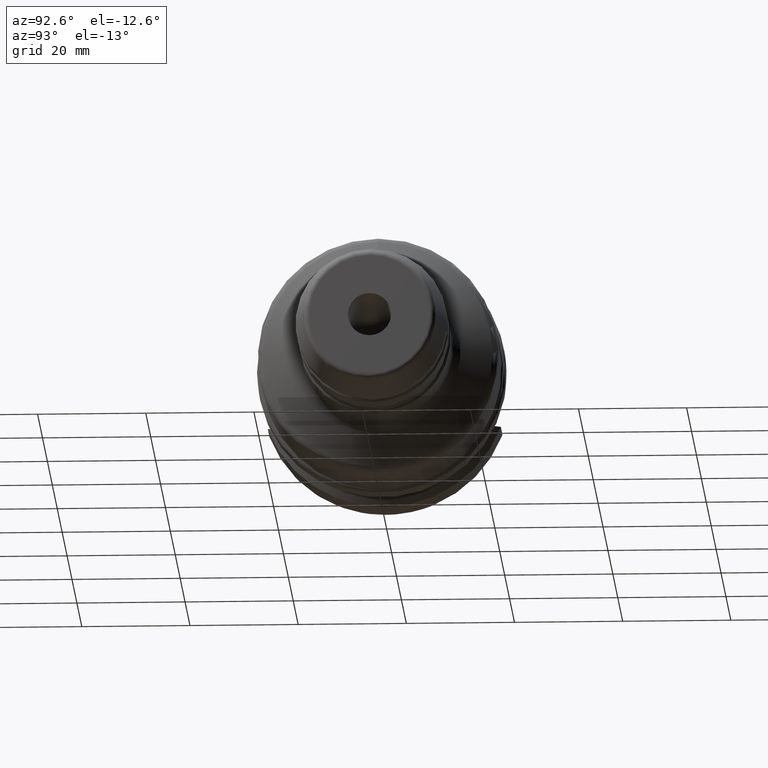
[diagram: clean part render]
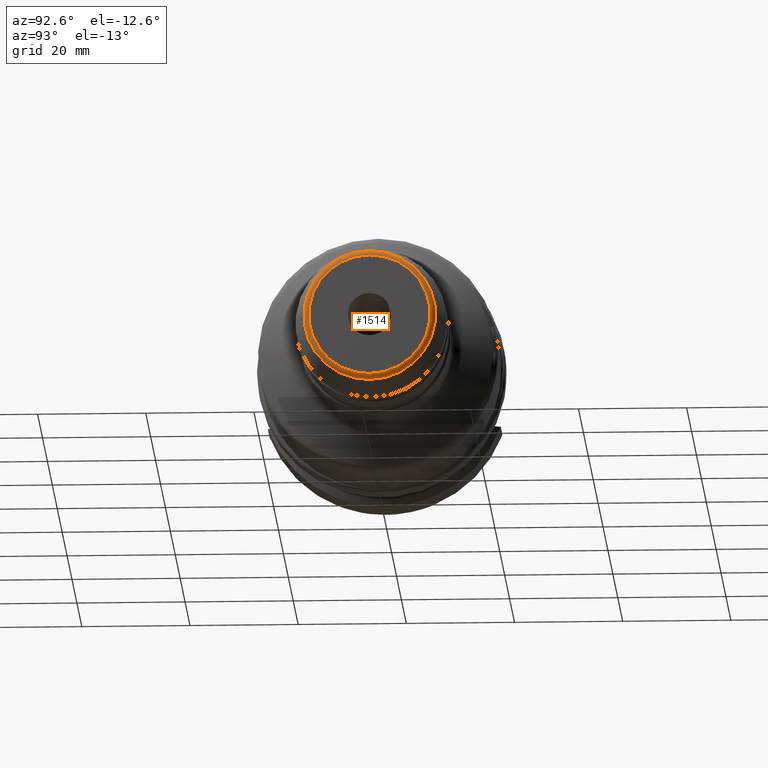
[diagram: same view with one face highlighted and labeled with its STEP entity id]
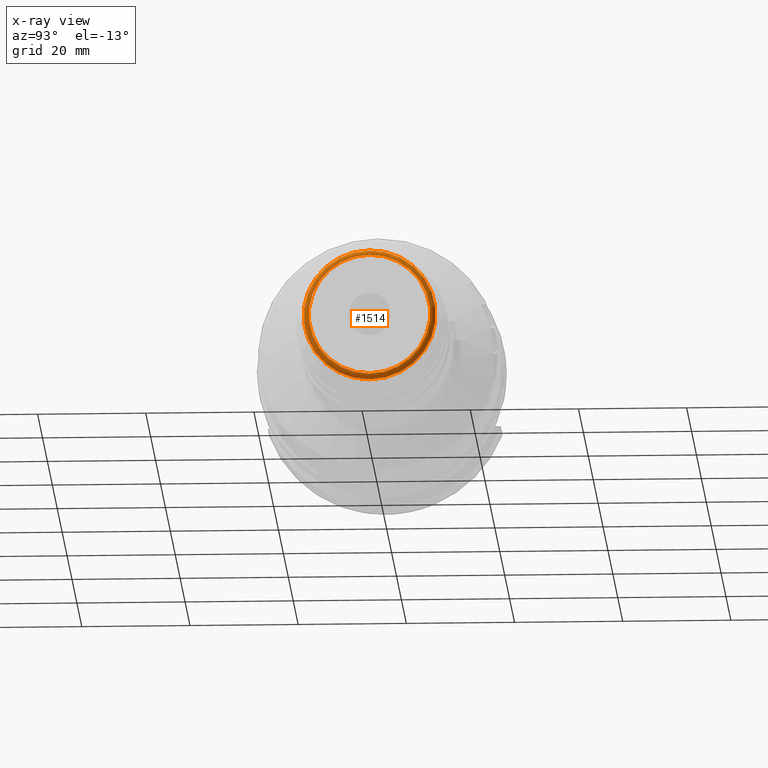
[diagram: x-ray of the same camera — body ghosted, the highlighted face saturated]
A machine part, auxiliary view. The second image highlights one B-rep face of the part: STEP entity #1514.
The next image is the same camera in x-ray: the body ghosted, the highlighted face saturated — about 0% of this face is hidden behind the body in this view.
In plain terms, the highlighted toroidal blend (fillet) surface has major radius 11.2327 mm and minor (blend) radius 1 mm.
Its self-contained STEP definition (entity closure, byte-faithful):
#326=FACE_OUTER_BOUND('',#421,.T.);
#421=EDGE_LOOP('',(#1076,#1077,#1078,#1079));
#538=CIRCLE('',#1663,11.232673012021);
#539=CIRCLE('',#1664,1.);
#540=CIRCLE('',#1665,12.1985988383101);
#637=VERTEX_POINT('',#2441);
#638=VERTEX_POINT('',#2443);
#802=EDGE_CURVE('',#637,#637,#538,.T.);
#803=EDGE_CURVE('',#637,#638,#539,.T.);
#804=EDGE_CURVE('',#638,#638,#540,.T.);
#1076=ORIENTED_EDGE('',*,*,#802,.T.);
#1077=ORIENTED_EDGE('',*,*,#803,.T.);
#1078=ORIENTED_EDGE('',*,*,#804,.T.);
#1079=ORIENTED_EDGE('',*,*,#803,.F.);
#1485=TOROIDAL_SURFACE('',#1662,11.232673012021,1.);
#1514=ADVANCED_FACE('',(#326),#1485,.T.);
#1662=AXIS2_PLACEMENT_3D('',#2440,#1946,#1947);
#1663=AXIS2_PLACEMENT_3D('',#2442,#1948,#1949);
#1664=AXIS2_PLACEMENT_3D('',#2444,#1950,#1951);
#1665=AXIS2_PLACEMENT_3D('',#2445,#1952,#1953);
#1946=DIRECTION('center_axis',(1.,0.,0.));
#1947=DIRECTION('ref_axis',(0.,0.,-1.));
#1948=DIRECTION('center_axis',(-1.,0.,0.));
#1949=DIRECTION('ref_axis',(0.,1.22464679914735E-16,1.));
#1950=DIRECTION('center_axis',(0.,-1.,-1.22464679914735E-16));
#1951=DIRECTION('ref_axis',(0.,-1.22464679914735E-16,1.));
#1952=DIRECTION('center_axis',(1.,0.,0.));
#1953=DIRECTION('ref_axis',(0.,0.,1.));
#2440=CARTESIAN_POINT('Origin',(69.,0.,0.));
#2441=CARTESIAN_POINT('',(70.,-1.37560570500404E-15,11.232673012021));
#2442=CARTESIAN_POINT('Origin',(70.,0.,0.));
#2443=CARTESIAN_POINT('',(69.2588190451025,-1.49389750214191E-15,12.1985988383101));
#2444=CARTESIAN_POINT('Origin',(69.,-1.37560570500404E-15,11.232673012021));
#2445=CARTESIAN_POINT('Origin',(69.2588190451025,-1.49389750214191E-15,
0.));